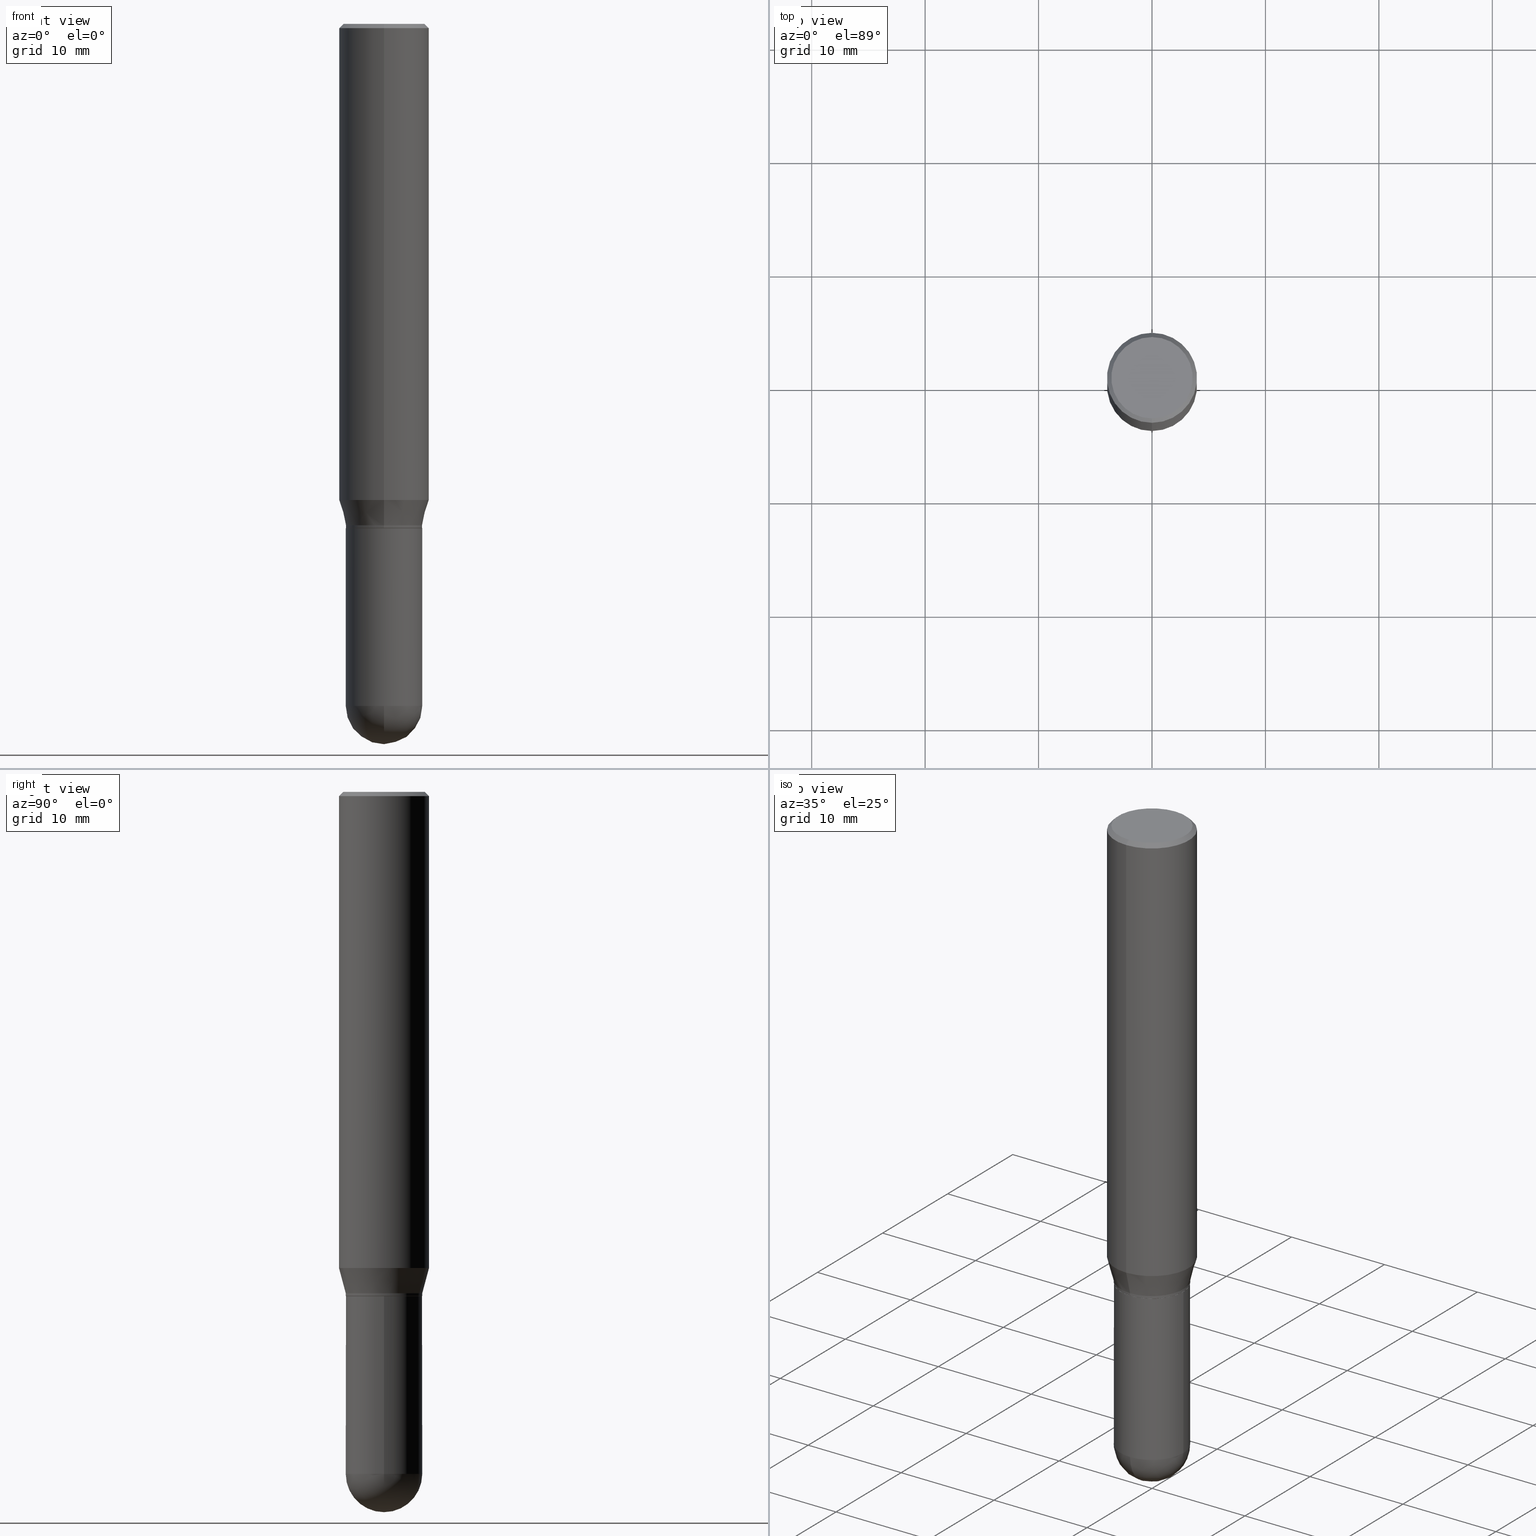
[diagram: canonical four-view strip — front | top / right | iso, engineering-drawing reading convention]
A machine part, canonical four-view strip (front | top / right | iso — engineering-drawing reading convention). The complete STEP part file that produces these views, byte-faithful:
ISO-10303-21;
HEADER;
FILE_DESCRIPTION (( 'STEP AP203' ),
    '1' );
FILE_NAME ('39134.STEP',
    '2024-03-08T12:45:31',
    ( '' ),
    ( '' ),
    'SwSTEP 2.0',
    'SolidWorks 2023',
    '' );
FILE_SCHEMA (( 'CONFIG_CONTROL_DESIGN' ));
ENDSEC;

DATA;
#1 = CIRCLE ( 'NONE', #288, 0.1562500000000000000 ) ;
#2 = LOCAL_TIME ( 7, 45, 31.00000000000000000, #375 ) ;
#3 = AXIS2_PLACEMENT_3D ( 'NONE', #153, #104, #146 ) ;
#4 = CARTESIAN_POINT ( 'NONE',  ( 0.1328000000000000014, -7.037429786572241288E-15, -1.750000000000000222 ) ) ;
#5 = DIRECTION ( 'NONE',  ( 2.445566685211260187E-29, -3.491341170506808259E-15, -1.000000000000000000 ) ) ;
#6 = ORIENTED_EDGE ( 'NONE', *, *, #258, .T. ) ;
#7 = CARTESIAN_POINT ( 'NONE',  ( 4.279741699119705467E-29, -6.109847048386914553E-15, -1.750000000000000222 ) ) ;
#8 = ORIENTED_EDGE ( 'NONE', *, *, #419, .T. ) ;
#9 = AXIS2_PLACEMENT_3D ( 'NONE', #286, #485, #125 ) ;
#10 = FACE_OUTER_BOUND ( 'NONE', #55, .T. ) ;
#11 = VERTEX_POINT ( 'NONE', #184 ) ;
#12 = DIRECTION ( 'NONE',  ( -2.445566685211260187E-29, 3.491341170506808259E-15, 1.000000000000000000 ) ) ;
#13 = ORIENTED_EDGE ( 'NONE', *, *, #376, .T. ) ;
#14 = EDGE_LOOP ( 'NONE', ( #492, #315, #459, #126 ) ) ;
#15 = DIRECTION ( 'NONE',  ( -6.982962677686265133E-15, -1.000000000000000000, 4.114228906120880627E-15 ) ) ;
#16 = VECTOR ( 'NONE', #461, 39.37007874015748143 ) ;
#17 = ORIENTED_EDGE ( 'NONE', *, *, #129, .T. ) ;
#18 = CLOSED_SHELL ( 'NONE', ( #276, #359, #114, #438, #188, #347, #447, #269, #42, #407, #157, #490 ) ) ;
#19 = CARTESIAN_POINT ( 'NONE',  ( -1.091087918388438547E-15, -0.1562500000000057454, -1.652483408562509304 ) ) ;
#20 = DIRECTION ( 'NONE',  ( 2.445566685211259906E-29, -3.491341170506808259E-15, -1.000000000000000000 ) ) ;
#21 = DIRECTION ( 'NONE',  ( -6.982962677686265133E-15, -1.000000000000000000, 3.491341170506808654E-15 ) ) ;
#22 = VERTEX_POINT ( 'NONE', #457 ) ;
#23 = CC_DESIGN_PERSON_AND_ORGANIZATION_ASSIGNMENT ( #504, #432, ( #442 ) ) ;
#24 = DIRECTION ( 'NONE',  ( -2.445566685211260187E-29, 3.491341170506808259E-15, 1.000000000000000000 ) ) ;
#25 = EDGE_LOOP ( 'NONE', ( #143, #358, #301, #480, #168 ) ) ;
#26 = AXIS2_PLACEMENT_3D ( 'NONE', #341, #80, #344 ) ;
#27 = AXIS2_PLACEMENT_3D ( 'NONE', #312, #382, #81 ) ;
#28 = EDGE_CURVE ( 'NONE', #219, #22, #340, .T. ) ;
#29 = EDGE_CURVE ( 'NONE', #421, #370, #416, .T. ) ;
#30 = DIRECTION ( 'NONE',  ( -2.445468806185136597E-29, 3.491481338843145583E-15, 1.000000000000000000 ) ) ;
#31 = PERSON_AND_ORGANIZATION ( #414, #165 ) ;
#32 = CARTESIAN_POINT ( 'NONE',  ( -9.273374435966920461E-16, -0.1328000000000059411, -1.749499999999999833 ) ) ;
#33 = PRODUCT_DEFINITION ( 'UNKNOWN', '', #442, #335 ) ;
#34 = DATE_AND_TIME ( #265, #121 ) ;
#35 = DIRECTION ( 'NONE',  ( -6.982962677686265922E-15, -1.000000000000000000, 4.129777768199944284E-15 ) ) ;
#36 = AXIS2_PLACEMENT_3D ( 'NONE', #7, #12, #167 ) ;
#37 =( GEOMETRIC_REPRESENTATION_CONTEXT ( 3 ) GLOBAL_UNCERTAINTY_ASSIGNED_CONTEXT ( ( #422 ) ) GLOBAL_UNIT_ASSIGNED_CONTEXT ( ( #182, #171, #130 ) ) REPRESENTATION_CONTEXT ( 'NONE', 'WORKASPACE' ) );
#38 = COORDINATED_UNIVERSAL_TIME_OFFSET ( 5, 0, .BEHIND. ) ;
#39 = CYLINDRICAL_SURFACE ( 'NONE', #26, 0.1328000000000000014 ) ;
#40 = PERSON_AND_ORGANIZATION_ROLE ( 'classification_officer' ) ;
#41 = FACE_OUTER_BOUND ( 'NONE', #49, .T. ) ;
#42 = ADVANCED_FACE ( 'NONE', ( #62 ), #217, .F. ) ;
#43 = DIRECTION ( 'NONE',  ( -2.445566685211260187E-29, 3.491341170506808259E-15, 1.000000000000000000 ) ) ;
#44 = CONICAL_SURFACE ( 'NONE', #208, 0.1327999999999999181, 0.2617993877991504625 ) ;
#45 = AXIS2_PLACEMENT_3D ( 'NONE', #112, #310, #110 ) ;
#46 = DIRECTION ( 'NONE',  ( -2.445468806185136597E-29, 3.491481338843145583E-15, 1.000000000000000000 ) ) ;
#47 = ORIENTED_EDGE ( 'NONE', *, *, #481, .F. ) ;
#48 = CARTESIAN_POINT ( 'NONE',  ( 0.1328000000000000014, -9.273374435967362223E-16, 6.475562758257002307E-30 ) ) ;
#49 = EDGE_LOOP ( 'NONE', ( #411, #176, #124, #205, #264 ) ) ;
#50 = CARTESIAN_POINT ( 'NONE',  ( -0.1328000000000000014, -6.243962731053086807E-15, -2.367199999999999971 ) ) ;
#51 = ORIENTED_EDGE ( 'NONE', *, *, #318, .T. ) ;
#52 = DIRECTION ( 'NONE',  ( -2.445566685211260187E-29, 3.491341170506808259E-15, 1.000000000000000000 ) ) ;
#53 = ORIENTED_EDGE ( 'NONE', *, *, #175, .F. ) ;
#54 = DIRECTION ( 'NONE',  ( 6.982962677686265133E-15, 1.000000000000000000, -3.496765431890256920E-15 ) ) ;
#55 = EDGE_LOOP ( 'NONE', ( #225, #336, #290, #287 ) ) ;
#56 = CYLINDRICAL_SURFACE ( 'NONE', #394, 0.1562500000000000000 ) ;
#57 = EDGE_CURVE ( 'NONE', #409, #163, #455, .T. ) ;
#58 = ORIENTED_EDGE ( 'NONE', *, *, #89, .F. ) ;
#59 = CARTESIAN_POINT ( 'NONE',  ( 0.000000000000000000, 0.000000000000000000, 0.000000000000000000 ) ) ;
#60 = VECTOR ( 'NONE', #158, 39.37007874015748143 ) ;
#61 = APPROVAL_PERSON_ORGANIZATION ( #339, #159, #194 ) ;
#62 = FACE_OUTER_BOUND ( 'NONE', #284, .T. ) ;
#63 = DIRECTION ( 'NONE',  ( -6.982962677686265133E-15, -1.000000000000000000, 3.491341170506808654E-15 ) ) ;
#64 = ORIENTED_EDGE ( 'NONE', *, *, #275, .F. ) ;
#65 = DIRECTION ( 'NONE',  ( -6.982962677686265133E-15, -1.000000000000000000, 3.491341170506807865E-15 ) ) ;
#66 = ORIENTED_EDGE ( 'NONE', *, *, #383, .T. ) ;
#67 = DIRECTION ( 'NONE',  ( -2.445566685211260187E-29, 3.491341170506808259E-15, 1.000000000000000000 ) ) ;
#68 = ORIENTED_EDGE ( 'NONE', *, *, #493, .F. ) ;
#69 = AXIS2_PLACEMENT_3D ( 'NONE', #123, #46, #82 ) ;
#70 = AXIS2_PLACEMENT_3D ( 'NONE', #197, #77, #466 ) ;
#71 = EDGE_CURVE ( 'NONE', #203, #370, #334, .T. ) ;
#72 = PERSON_AND_ORGANIZATION ( #414, #165 ) ;
#73 = DIRECTION ( 'NONE',  ( -1.000000000000000000, 6.982962677686265922E-15, -4.883557194083112340E-29 ) ) ;
#74 = APPROVAL_STATUS ( 'not_yet_approved' ) ;
#75 = CARTESIAN_POINT ( 'NONE',  ( -0.1328000000000000014, 9.436007530894130566E-16, -6.532345799858513932E-30 ) ) ;
#76 = MECHANICAL_CONTEXT ( 'NONE', #149, 'mechanical' ) ;
#77 = DIRECTION ( 'NONE',  ( 2.438088387897960049E-29, -3.491481338843145188E-15, -1.000000000000000000 ) ) ;
#78 = CIRCLE ( 'NONE', #181, 0.1328000000000000014 ) ;
#79 = DIRECTION ( 'NONE',  ( 0.000000000000000000, 0.000000000000000000, 1.000000000000000000 ) ) ;
#80 = DIRECTION ( 'NONE',  ( -2.445468806185136597E-29, 3.491481338843145583E-15, 1.000000000000000000 ) ) ;
#81 = DIRECTION ( 'NONE',  ( 1.000000000000000000, -6.982962677686266711E-15, 4.876176775795935232E-29 ) ) ;
#82 = DIRECTION ( 'NONE',  ( 1.000000000000000000, -6.982962677686263555E-15, 0.000000000000000000 ) ) ;
#83 = ORIENTED_EDGE ( 'NONE', *, *, #71, .T. ) ;
#84 = CIRCLE ( 'NONE', #506, 0.1327999999999999181 ) ;
#85 = CYLINDRICAL_SURFACE ( 'NONE', #9, 0.1327999999999999181 ) ;
#86 = ORIENTED_EDGE ( 'NONE', *, *, #71, .F. ) ;
#87 = CARTESIAN_POINT ( 'NONE',  ( -1.020499077168515012E-15, -0.1412499999999999867, 3.422095079102854062E-16 ) ) ;
#88 = ORIENTED_EDGE ( 'NONE', *, *, #419, .F. ) ;
#89 = EDGE_CURVE ( 'NONE', #399, #260, #193, .T. ) ;
#90 = DIRECTION ( 'NONE',  ( 1.000000000000000000, -6.982962677686263555E-15, 0.000000000000000000 ) ) ;
#91 = AXIS2_PLACEMENT_3D ( 'NONE', #251, #283, #248 ) ;
#92 = LINE ( 'NONE', #398, #425 ) ;
#93 = EDGE_LOOP ( 'NONE', ( #170, #327, #377, #448 ) ) ;
#94 = ORIENTED_EDGE ( 'NONE', *, *, #57, .T. ) ;
#95 = ORIENTED_EDGE ( 'NONE', *, *, #493, .T. ) ;
#96 = CIRCLE ( 'NONE', #440, 0.1323000000000000009 ) ;
#97 = CARTESIAN_POINT ( 'NONE',  ( 9.418243962500552058E-16, 0.1322999999999938947, -1.750000000000000666 ) ) ;
#98 = VERTEX_POINT ( 'NONE', #303 ) ;
#99 = DIRECTION ( 'NONE',  ( 6.982962677686265922E-15, 1.000000000000000000, -4.114228906120878260E-15 ) ) ;
#100 = DIRECTION ( 'NONE',  ( -2.445566685211260187E-29, 3.491341170506808259E-15, 1.000000000000000000 ) ) ;
#101 = ORIENTED_EDGE ( 'NONE', *, *, #285, .T. ) ;
#102 = EDGE_CURVE ( 'NONE', #484, #161, #429, .T. ) ;
#103 = APPROVAL_STATUS ( 'not_yet_approved' ) ;
#104 = DIRECTION ( 'NONE',  ( -2.445468806185136597E-29, 3.491481338843145583E-15, 1.000000000000000000 ) ) ;
#105 = CIRCLE ( 'NONE', #415, 0.1327999999999999181 ) ;
#106 = LOCAL_TIME ( 7, 45, 31.00000000000000000, #469 ) ;
#107 = COORDINATED_UNIVERSAL_TIME_OFFSET ( 5, 0, .BEHIND. ) ;
#108 = DIRECTION ( 'NONE',  ( -4.851104656540965064E-15, -0.7071067811865501263, -0.7071067811865449082 ) ) ;
#109 = CALENDAR_DATE ( 2024, 8, 3 ) ;
#110 = DIRECTION ( 'NONE',  ( -6.982962677686265133E-15, -1.000000000000000000, 4.114228906120880627E-15 ) ) ;
#111 = APPROVAL_DATE_TIME ( #145, #159 ) ;
#112 = CARTESIAN_POINT ( 'NONE',  ( 4.255286032267592960E-29, -6.074933636681847137E-15, -1.739999999999999991 ) ) ;
#113 = APPLICATION_PROTOCOL_DEFINITION ( 'international standard', 'config_control_design', 1994, #149 ) ;
#114 = ADVANCED_FACE ( 'NONE', ( #271 ), #166, .T. ) ;
#115 = DIRECTION ( 'NONE',  ( -2.445566685211260467E-29, 3.491341170506808259E-15, 1.000000000000000000 ) ) ;
#116 = CARTESIAN_POINT ( 'NONE',  ( 1.110223024625156343E-15, 0.1562500000000000000, -5.455220578916888275E-16 ) ) ;
#117 = SPHERICAL_SURFACE ( 'NONE', #317, 0.1328000000000000014 ) ;
#118 = ORIENTED_EDGE ( 'NONE', *, *, #371, .F. ) ;
#119 = CLOSED_SHELL ( 'NONE', ( #242, #392, #138, #226, #141 ) ) ;
#120 = VECTOR ( 'NONE', #412, 39.37007874015748854 ) ;
#121 = LOCAL_TIME ( 7, 45, 31.00000000000000000, #107 ) ;
#122 = PRODUCT ( '39134', '39134', '', ( #76 ) ) ;
#123 = CARTESIAN_POINT ( 'NONE',  ( 4.279570410823989044E-29, -6.110092342975505460E-15, -1.750000000000000222 ) ) ;
#124 = ORIENTED_EDGE ( 'NONE', *, *, #129, .F. ) ;
#125 = DIRECTION ( 'NONE',  ( -6.982962677686265133E-15, -1.000000000000000000, 3.491341170506807865E-15 ) ) ;
#126 = ORIENTED_EDGE ( 'NONE', *, *, #293, .F. ) ;
#127 = DIRECTION ( 'NONE',  ( 1.000000000000000000, -6.982962677686263555E-15, 0.000000000000000000 ) ) ;
#128 = EDGE_LOOP ( 'NONE', ( #86, #95, #8, #423 ) ) ;
#129 = EDGE_CURVE ( 'NONE', #210, #11, #387, .T. ) ;
#130 =( NAMED_UNIT ( * ) SI_UNIT ( $, .STERADIAN. ) SOLID_ANGLE_UNIT ( ) );
#131 = ORIENTED_EDGE ( 'NONE', *, *, #29, .F. ) ;
#132 = MANIFOLD_SOLID_BREP ( 'Body-Move/Copy2[1]', #119 ) ;
#133 = CARTESIAN_POINT ( 'NONE',  ( -1.091087918388478779E-15, -0.1562500000000000833, -0.01499999999999960566 ) ) ;
#134 = ORIENTED_EDGE ( 'NONE', *, *, #196, .T. ) ;
#135 = AXIS2_PLACEMENT_3D ( 'NONE', #319, #52, #245 ) ;
#136 = CYLINDRICAL_SURFACE ( 'NONE', #467, 0.1562500000000000000 ) ;
#137 = ORIENTED_EDGE ( 'NONE', *, *, #400, .F. ) ;
#138 = ADVANCED_FACE ( 'NONE', ( #391 ), #309, .F. ) ;
#139 = DIRECTION ( 'NONE',  ( -6.982962677686265133E-15, -1.000000000000000000, 4.114228906120880627E-15 ) ) ;
#140 = DIRECTION ( 'NONE',  ( -6.982962677686265133E-15, -1.000000000000000000, 3.496765431890256920E-15 ) ) ;
#141 = ADVANCED_FACE ( 'NONE', ( #151 ), #346, .T. ) ;
#142 = PERSON_AND_ORGANIZATION_ROLE ( 'design_owner' ) ;
#143 = ORIENTED_EDGE ( 'NONE', *, *, #144, .F. ) ;
#144 = EDGE_CURVE ( 'NONE', #292, #11, #471, .T. ) ;
#145 = DATE_AND_TIME ( #472, #106 ) ;
#146 = DIRECTION ( 'NONE',  ( 1.000000000000000000, -6.982962677686263555E-15, 0.000000000000000000 ) ) ;
#147 = AXIS2_PLACEMENT_3D ( 'NONE', #321, #274, #316 ) ;
#148 = AXIS2_PLACEMENT_3D ( 'NONE', #501, #331, #498 ) ;
#149 = APPLICATION_CONTEXT ( 'configuration controlled 3d designs of mechanical parts and assemblies' ) ;
#150 = APPROVAL_ROLE ( '' ) ;
#151 = FACE_OUTER_BOUND ( 'NONE', #25, .T. ) ;
#152 = SHAPE_DEFINITION_REPRESENTATION ( #246, #349 ) ;
#153 = CARTESIAN_POINT ( 'NONE',  ( 5.788913758001455526E-29, -8.265034625309493084E-15, -2.367199999999999971 ) ) ;
#154 = PERSON_AND_ORGANIZATION_ROLE ( 'design_supplier' ) ;
#155 = DIRECTION ( 'NONE',  ( 5.024295867788147587E-15, 0.7071067811865620056, 0.7071067811865330288 ) ) ;
#156 = AXIS2_PLACEMENT_3D ( 'NONE', #439, #482, #281 ) ;
#157 = ADVANCED_FACE ( 'NONE', ( #234 ), #356, .T. ) ;
#158 = DIRECTION ( 'NONE',  ( 4.937700262164548831E-15, 0.7071067811865452413, -0.7071067811865497932 ) ) ;
#159 = APPROVAL ( #74, 'UNSPECIFIED' ) ;
#160 = FACE_OUTER_BOUND ( 'NONE', #93, .T. ) ;
#161 = VERTEX_POINT ( 'NONE', #379 ) ;
#162 = CARTESIAN_POINT ( 'NONE',  ( 4.255286032267592960E-29, -6.074933636681847137E-15, -1.739999999999999991 ) ) ;
#163 = VERTEX_POINT ( 'NONE', #32 ) ;
#164 = AXIS2_PLACEMENT_3D ( 'NONE', #390, #79, #236 ) ;
#165 = ORGANIZATION ( 'UNSPECIFIED', 'UNSPECIFIED', '' ) ;
#166 = CONICAL_SURFACE ( 'NONE', #460, 0.1562500000000000000, 0.7853981633974485010 ) ;
#167 = DIRECTION ( 'NONE',  ( -6.982962677686265922E-15, -1.000000000000000000, 4.129777768199944284E-15 ) ) ;
#168 = ORIENTED_EDGE ( 'NONE', *, *, #285, .F. ) ;
#169 = DIRECTION ( 'NONE',  ( -2.445566685211260187E-29, 3.491341170506808259E-15, 1.000000000000000000 ) ) ;
#170 = ORIENTED_EDGE ( 'NONE', *, *, #400, .T. ) ;
#171 =( NAMED_UNIT ( * ) PLANE_ANGLE_UNIT ( ) SI_UNIT ( $, .RADIAN. ) );
#172 = ORIENTED_EDGE ( 'NONE', *, *, #89, .T. ) ;
#173 = AXIS2_PLACEMENT_3D ( 'NONE', #333, #298, #454 ) ;
#174 = LINE ( 'NONE', #458, #16 ) ;
#175 = EDGE_CURVE ( 'NONE', #22, #299, #453, .T. ) ;
#176 = ORIENTED_EDGE ( 'NONE', *, *, #144, .T. ) ;
#177 = DIRECTION ( 'NONE',  ( -2.445566685211260187E-29, 3.491341170506808259E-15, 1.000000000000000000 ) ) ;
#178 = CARTESIAN_POINT ( 'NONE',  ( 5.788913758001455526E-29, -8.265034625309493084E-15, -2.367199999999999971 ) ) ;
#179 = CARTESIAN_POINT ( 'NONE',  ( 0.000000000000000000, 0.000000000000000000, 0.000000000000000000 ) ) ;
#180 = DIRECTION ( 'NONE',  ( 6.982962677686265922E-15, 1.000000000000000000, -3.491341170506808259E-15 ) ) ;
#181 = AXIS2_PLACEMENT_3D ( 'NONE', #478, #395, #127 ) ;
#182 =( CONVERSION_BASED_UNIT ( 'INCH', #456 ) LENGTH_UNIT ( ) NAMED_UNIT ( #384 ) );
#183 = AXIS2_PLACEMENT_3D ( 'NONE', #508, #343, #35 ) ;
#184 = CARTESIAN_POINT ( 'NONE',  ( -0.1328000000000000014, -6.243962731053086018E-15, -1.750000000000000222 ) ) ;
#185 = ORIENTED_EDGE ( 'NONE', *, *, #318, .F. ) ;
#186 = DATE_AND_TIME ( #109, #434 ) ;
#187 = CARTESIAN_POINT ( 'NONE',  ( 5.777557149681153201E-29, -8.281297934802172088E-15, -2.367199999999999971 ) ) ;
#188 = ADVANCED_FACE ( 'NONE', ( #393 ), #489, .T. ) ;
#189 = APPROVAL_DATE_TIME ( #34, #427 ) ;
#190 = AXIS2_PLACEMENT_3D ( 'NONE', #363, #100, #140 ) ;
#191 = DIRECTION ( 'NONE',  ( -1.000000000000000000, 7.105427357601001070E-15, -4.926315508542082329E-29 ) ) ;
#192 = CIRCLE ( 'NONE', #173, 0.1328000000000000014 ) ;
#193 = CIRCLE ( 'NONE', #148, 0.1412499999999999867 ) ;
#194 = APPROVAL_ROLE ( '' ) ;
#195 = DIRECTION ( 'NONE',  ( 6.982962677686265133E-15, 1.000000000000000000, -3.496765431890256920E-15 ) ) ;
#196 = EDGE_CURVE ( 'NONE', #260, #399, #326, .T. ) ;
#197 = CARTESIAN_POINT ( 'NONE',  ( 9.273374435967790180E-16, 0.1327999999999938952, -1.750000000000000666 ) ) ;
#198 = CC_DESIGN_PERSON_AND_ORGANIZATION_ASSIGNMENT ( #272, #154, ( #442 ) ) ;
#199 = EDGE_CURVE ( 'NONE', #352, #219, #233, .T. ) ;
#200 = AXIS2_PLACEMENT_3D ( 'NONE', #263, #218, #491 ) ;
#201 = AXIS2_PLACEMENT_3D ( 'NONE', #503, #20, #180 ) ;
#202 = LINE ( 'NONE', #48, #373 ) ;
#203 = VERTEX_POINT ( 'NONE', #267 ) ;
#204 = DIRECTION ( 'NONE',  ( -2.445566685211260467E-29, 3.491341170506808259E-15, 1.000000000000000000 ) ) ;
#205 = ORIENTED_EDGE ( 'NONE', *, *, #300, .F. ) ;
#206 = LINE ( 'NONE', #351, #60 ) ;
#207 = ORIENTED_EDGE ( 'NONE', *, *, #293, .T. ) ;
#208 = AXIS2_PLACEMENT_3D ( 'NONE', #162, #209, #444 ) ;
#209 = DIRECTION ( 'NONE',  ( -2.445566685211260187E-29, 3.491341170506808259E-15, 1.000000000000000000 ) ) ;
#210 = VERTEX_POINT ( 'NONE', #4 ) ;
#211 = DIRECTION ( 'NONE',  ( -2.445566685211260467E-29, 3.491341170506808259E-15, 1.000000000000000000 ) ) ;
#212 = EDGE_LOOP ( 'NONE', ( #137, #443 ) ) ;
#213 = CYLINDRICAL_SURFACE ( 'NONE', #215, 0.1327999999999999181 ) ;
#214 = VERTEX_POINT ( 'NONE', #307 ) ;
#215 = AXIS2_PLACEMENT_3D ( 'NONE', #179, #417, #65 ) ;
#216 = LINE ( 'NONE', #500, #120 ) ;
#217 = PLANE ( 'NONE',  #201 ) ;
#218 = DIRECTION ( 'NONE',  ( -2.445566685211259906E-29, 3.491341170506808259E-15, 1.000000000000000000 ) ) ;
#219 = VERTEX_POINT ( 'NONE', #433 ) ;
#220 = CC_DESIGN_PERSON_AND_ORGANIZATION_ASSIGNMENT ( #502, #507, ( #33 ) ) ;
#221 = EDGE_LOOP ( 'NONE', ( #256, #464, #244, #486 ) ) ;
#222 = CIRCLE ( 'NONE', #91, 0.1323000000000000009 ) ;
#223 =( LENGTH_UNIT ( ) NAMED_UNIT ( * ) SI_UNIT ( $, .METRE. ) );
#224 = SECURITY_CLASSIFICATION ( '', '', #308 ) ;
#225 = ORIENTED_EDGE ( 'NONE', *, *, #302, .T. ) ;
#226 = ADVANCED_FACE ( 'NONE', ( #388 ), #273, .T. ) ;
#227 = DIRECTION ( 'NONE',  ( 6.982962677686265922E-15, 1.000000000000000000, -4.114228906120878260E-15 ) ) ;
#228 = PERSON_AND_ORGANIZATION ( #414, #165 ) ;
#229 = CARTESIAN_POINT ( 'NONE',  ( 4.279570410823989044E-29, -6.110092342975505460E-15, -1.750000000000000222 ) ) ;
#230 = CC_DESIGN_DATE_AND_TIME_ASSIGNMENT ( #342, #232, ( #33 ) ) ;
#231 = EDGE_CURVE ( 'NONE', #260, #445, #470, .T. ) ;
#232 = DATE_TIME_ROLE ( 'creation_date' ) ;
#233 = CIRCLE ( 'NONE', #499, 0.1328000000000000014 ) ;
#234 = FACE_OUTER_BOUND ( 'NONE', #249, .T. ) ;
#235 = AXIS2_PLACEMENT_3D ( 'NONE', #229, #266, #437 ) ;
#236 = DIRECTION ( 'NONE',  ( 1.000000000000000000, 0.000000000000000000, 0.000000000000000000 ) ) ;
#237 = LINE ( 'NONE', #512, #250 ) ;
#238 = DIRECTION ( 'NONE',  ( 2.445566685211260187E-29, -3.491341170506808259E-15, -1.000000000000000000 ) ) ;
#239 = DIRECTION ( 'NONE',  ( -2.445468806185136877E-29, 3.491481338843145188E-15, 1.000000000000000000 ) ) ;
#240 = CONICAL_SURFACE ( 'NONE', #36, 0.1323000000000000009, 0.7853981633974653764 ) ;
#241 = ORIENTED_EDGE ( 'NONE', *, *, #28, .F. ) ;
#242 = ADVANCED_FACE ( 'NONE', ( #41 ), #39, .T. ) ;
#243 = CARTESIAN_POINT ( 'NONE',  ( 9.273374435967940064E-16, 0.1327999999999917302, -2.367200000000000415 ) ) ;
#244 = ORIENTED_EDGE ( 'NONE', *, *, #424, .F. ) ;
#245 = DIRECTION ( 'NONE',  ( -6.982962677686265133E-15, -1.000000000000000000, 4.114228906120880627E-15 ) ) ;
#246 = PRODUCT_DEFINITION_SHAPE ( 'NONE', 'NONE',  #33 ) ;
#247 = EDGE_LOOP ( 'NONE', ( #47, #361, #323, #406 ) ) ;
#248 = DIRECTION ( 'NONE',  ( -6.982962677686265922E-15, -1.000000000000000000, 4.129777768199944284E-15 ) ) ;
#249 = EDGE_LOOP ( 'NONE', ( #320, #418, #94, #185 ) ) ;
#250 = VECTOR ( 'NONE', #115, 39.37007874015748143 ) ;
#251 = CARTESIAN_POINT ( 'NONE',  ( 4.279741699119705467E-29, -6.109847048386914553E-15, -1.750000000000000222 ) ) ;
#252 = EDGE_LOOP ( 'NONE', ( #397, #83, #131, #88 ) ) ;
#253 = DIRECTION ( 'NONE',  ( -2.445566685211260187E-29, 3.491341170506808259E-15, 1.000000000000000000 ) ) ;
#254 = DIRECTION ( 'NONE',  ( -4.937700262164631661E-15, -0.7071067811865571207, 0.7071067811865379138 ) ) ;
#255 = PLANE ( 'NONE',  #200 ) ;
#256 = ORIENTED_EDGE ( 'NONE', *, *, #29, .T. ) ;
#257 = CIRCLE ( 'NONE', #156, 0.1327999999999999181 ) ;
#258 = EDGE_CURVE ( 'NONE', #163, #214, #237, .T. ) ;
#259 = FACE_OUTER_BOUND ( 'NONE', #368, .T. ) ;
#260 = VERTEX_POINT ( 'NONE', #87 ) ;
#261 = DIRECTION ( 'NONE',  ( -6.982962677686265133E-15, -1.000000000000000000, 3.496765431890256920E-15 ) ) ;
#262 = ORIENTED_EDGE ( 'NONE', *, *, #483, .T. ) ;
#263 = CARTESIAN_POINT ( 'NONE',  ( 4.279741699119705467E-29, -6.109847048386914553E-15, -1.750000000000000222 ) ) ;
#264 = ORIENTED_EDGE ( 'NONE', *, *, #175, .T. ) ;
#265 = CALENDAR_DATE ( 2024, 8, 3 ) ;
#266 = DIRECTION ( 'NONE',  ( -2.445468806185136597E-29, 3.491481338843145583E-15, 1.000000000000000000 ) ) ;
#267 = CARTESIAN_POINT ( 'NONE',  ( 1.026911888857325918E-15, 0.1327999999999938396, -1.740000000000000657 ) ) ;
#268 = DIRECTION ( 'NONE',  ( -7.105427357601001859E-15, -1.000000000000000000, 0.000000000000000000 ) ) ;
#269 = ADVANCED_FACE ( 'NONE', ( #348 ), #278, .T. ) ;
#270 = AXIS2_PLACEMENT_3D ( 'NONE', #449, #5, #54 ) ;
#271 = FACE_OUTER_BOUND ( 'NONE', #14, .T. ) ;
#272 = PERSON_AND_ORGANIZATION ( #414, #165 ) ;
#273 = SPHERICAL_SURFACE ( 'NONE', #364, 0.1328000000000000014 ) ;
#274 = DIRECTION ( 'NONE',  ( -2.445566685211260187E-29, 3.491341170506808259E-15, 1.000000000000000000 ) ) ;
#275 = EDGE_CURVE ( 'NONE', #161, #203, #92, .T. ) ;
#276 = ADVANCED_FACE ( 'NONE', ( #10 ), #85, .T. ) ;
#277 = CARTESIAN_POINT ( 'NONE',  ( 5.777557149681153201E-29, -8.281297934802172088E-15, -2.367199999999999971 ) ) ;
#278 = CONICAL_SURFACE ( 'NONE', #270, 0.1562500000000000000, 0.7853981633974485010 ) ;
#279 = EDGE_LOOP ( 'NONE', ( #17, #101 ) ) ;
#280 = APPROVAL_PERSON_ORGANIZATION ( #72, #427, #150 ) ;
#281 = DIRECTION ( 'NONE',  ( -6.982962677686265133E-15, -1.000000000000000000, 4.114228906120880627E-15 ) ) ;
#282 = ORIENTED_EDGE ( 'NONE', *, *, #231, .F. ) ;
#283 = DIRECTION ( 'NONE',  ( -2.445566685211260187E-29, 3.491341170506808259E-15, 1.000000000000000000 ) ) ;
#284 = EDGE_LOOP ( 'NONE', ( #172, #134 ) ) ;
#285 = EDGE_CURVE ( 'NONE', #11, #210, #324, .T. ) ;
#286 = CARTESIAN_POINT ( 'NONE',  ( 0.000000000000000000, 0.000000000000000000, 0.000000000000000000 ) ) ;
#287 = ORIENTED_EDGE ( 'NONE', *, *, #258, .F. ) ;
#288 = AXIS2_PLACEMENT_3D ( 'NONE', #463, #497, #261 ) ;
#289 = LOCAL_TIME ( 7, 45, 31.00000000000000000, #38 ) ;
#290 = ORIENTED_EDGE ( 'NONE', *, *, #430, .F. ) ;
#291 = EDGE_CURVE ( 'NONE', #484, #409, #222, .T. ) ;
#292 = VERTEX_POINT ( 'NONE', #50 ) ;
#293 = EDGE_CURVE ( 'NONE', #399, #98, #206, .T. ) ;
#294 = CARTESIAN_POINT ( 'NONE',  ( 0.000000000000000000, 0.000000000000000000, 0.000000000000000000 ) ) ;
#295 = MANIFOLD_SOLID_BREP ( 'Body-Move/Copy2[2]', #18 ) ;
#296 = ORIENTED_EDGE ( 'NONE', *, *, #481, .T. ) ;
#297 = VECTOR ( 'NONE', #204, 39.37007874015748143 ) ;
#298 = DIRECTION ( 'NONE',  ( 1.000000000000000000, -6.982962677686265922E-15, 4.883557194083112340E-29 ) ) ;
#299 = VERTEX_POINT ( 'NONE', #243 ) ;
#300 = EDGE_CURVE ( 'NONE', #22, #210, #202, .T. ) ;
#301 = ORIENTED_EDGE ( 'NONE', *, *, #28, .T. ) ;
#302 = EDGE_CURVE ( 'NONE', #163, #161, #405, .T. ) ;
#303 = CARTESIAN_POINT ( 'NONE',  ( 1.110223024625197364E-15, 0.1562499999999999445, -0.01500000000000069854 ) ) ;
#304 = CC_DESIGN_PERSON_AND_ORGANIZATION_ASSIGNMENT ( #228, #142, ( #122 ) ) ;
#305 = DATE_AND_TIME ( #435, #289 ) ;
#306 = VECTOR ( 'NONE', #329, 39.37007874015748854 ) ;
#307 = CARTESIAN_POINT ( 'NONE',  ( -9.273374435966928350E-16, -0.1328000000000059966, -1.739999999999999547 ) ) ;
#308 = SECURITY_CLASSIFICATION_LEVEL ( 'unclassified' ) ;
#309 = PLANE ( 'NONE',  #70 ) ;
#310 = DIRECTION ( 'NONE',  ( -2.445566685211260187E-29, 3.491341170506808259E-15, 1.000000000000000000 ) ) ;
#311 = VECTOR ( 'NONE', #108, 39.37007874015748143 ) ;
#312 = CARTESIAN_POINT ( 'NONE',  ( 0.000000000000000000, 0.000000000000000000, 0.000000000000000000 ) ) ;
#313 = LINE ( 'NONE', #116, #297 ) ;
#314 = DIRECTION ( 'NONE',  ( -2.445468806185136597E-29, 3.491481338843145583E-15, 1.000000000000000000 ) ) ;
#315 = ORIENTED_EDGE ( 'NONE', *, *, #231, .T. ) ;
#316 = DIRECTION ( 'NONE',  ( -6.982962677686265133E-15, -1.000000000000000000, 3.496765431890256920E-15 ) ) ;
#317 = AXIS2_PLACEMENT_3D ( 'NONE', #277, #441, #99 ) ;
#318 = EDGE_CURVE ( 'NONE', #161, #163, #257, .T. ) ;
#319 = CARTESIAN_POINT ( 'NONE',  ( 4.278518915777100094E-29, -6.108101377801662129E-15, -1.749500000000000277 ) ) ;
#320 = ORIENTED_EDGE ( 'NONE', *, *, #102, .F. ) ;
#321 = CARTESIAN_POINT ( 'NONE',  ( 3.668350027816927222E-31, -5.237011755760265859E-17, -0.01500000000000015210 ) ) ;
#322 = EDGE_LOOP ( 'NONE', ( #282, #58, #207, #66 ) ) ;
#323 = ORIENTED_EDGE ( 'NONE', *, *, #381, .F. ) ;
#324 = CIRCLE ( 'NONE', #69, 0.1328000000000000014 ) ;
#325 = PRODUCT_RELATED_PRODUCT_CATEGORY ( 'detail', '', ( #122 ) ) ;
#326 = CIRCLE ( 'NONE', #426, 0.1412499999999999867 ) ;
#327 = ORIENTED_EDGE ( 'NONE', *, *, #102, .T. ) ;
#328 = FACE_OUTER_BOUND ( 'NONE', #221, .T. ) ;
#329 = DIRECTION ( 'NONE',  ( 1.839019923739601499E-15, 0.2588190451025251249, 0.9659258262890670910 ) ) ;
#330 = DIRECTION ( 'NONE',  ( -6.982962677686265922E-15, -1.000000000000000000, 4.129777768199944284E-15 ) ) ;
#331 = DIRECTION ( 'NONE',  ( -2.445566685211260187E-29, 3.491341170506808259E-15, 1.000000000000000000 ) ) ;
#332 = CC_DESIGN_SECURITY_CLASSIFICATION ( #224, ( #442 ) ) ;
#333 = CARTESIAN_POINT ( 'NONE',  ( 5.777557149681153201E-29, -8.281297934802172088E-15, -2.367199999999999971 ) ) ;
#334 = LINE ( 'NONE', #495, #306 ) ;
#335 = DESIGN_CONTEXT ( 'detailed design', #496, 'design' ) ;
#336 = ORIENTED_EDGE ( 'NONE', *, *, #275, .T. ) ;
#337 = APPROVAL_DATE_TIME ( #186, #403 ) ;
#338 = CARTESIAN_POINT ( 'NONE',  ( 5.777557149681153201E-29, -8.281297934802172088E-15, -2.367199999999999971 ) ) ;
#339 = PERSON_AND_ORGANIZATION ( #414, #165 ) ;
#340 = CIRCLE ( 'NONE', #374, 0.1328000000000000014 ) ;
#341 = CARTESIAN_POINT ( 'NONE',  ( 0.000000000000000000, 0.000000000000000000, 0.000000000000000000 ) ) ;
#342 = DATE_AND_TIME ( #378, #2 ) ;
#343 = DIRECTION ( 'NONE',  ( -2.445566685211260187E-29, 3.491341170506808259E-15, 1.000000000000000000 ) ) ;
#344 = DIRECTION ( 'NONE',  ( 1.000000000000000000, -6.982962677686266711E-15, 4.876176775795935232E-29 ) ) ;
#345 = CIRCLE ( 'NONE', #450, 0.1562500000000000000 ) ;
#346 = CYLINDRICAL_SURFACE ( 'NONE', #27, 0.1328000000000000014 ) ;
#347 = ADVANCED_FACE ( 'NONE', ( #401 ), #44, .T. ) ;
#348 = FACE_OUTER_BOUND ( 'NONE', #322, .T. ) ;
#349 = ADVANCED_BREP_SHAPE_REPRESENTATION ( '39134', ( #132, #295, #164 ), #37 ) ;
#350 = CC_DESIGN_DATE_AND_TIME_ASSIGNMENT ( #305, #428, ( #224 ) ) ;
#351 = CARTESIAN_POINT ( 'NONE',  ( 1.091087918388479371E-15, 0.1562499999999999445, -0.01500000000000069854 ) ) ;
#352 = VERTEX_POINT ( 'NONE', #353 ) ;
#353 = CARTESIAN_POINT ( 'NONE',  ( 6.107993711302689769E-29, -8.736835001854202867E-15, -2.500000000000000000 ) ) ;
#354 = CIRCLE ( 'NONE', #147, 0.1562500000000000000 ) ;
#355 = ORIENTED_EDGE ( 'NONE', *, *, #199, .F. ) ;
#356 = CONICAL_SURFACE ( 'NONE', #183, 0.1323000000000000009, 0.7853981633974653764 ) ;
#357 = CARTESIAN_POINT ( 'NONE',  ( 1.038715698305832292E-15, 0.1412499999999999867, -6.440943727578878808E-16 ) ) ;
#358 = ORIENTED_EDGE ( 'NONE', *, *, #381, .T. ) ;
#359 = ADVANCED_FACE ( 'NONE', ( #160 ), #240, .T. ) ;
#360 = CARTESIAN_POINT ( 'NONE',  ( 1.110223024625197167E-15, 0.1562499999999942824, -1.652483408562510414 ) ) ;
#361 = ORIENTED_EDGE ( 'NONE', *, *, #199, .T. ) ;
#362 = CARTESIAN_POINT ( 'NONE',  ( 4.255286032267592960E-29, -6.074933636681847137E-15, -1.739999999999999991 ) ) ;
#363 = CARTESIAN_POINT ( 'NONE',  ( 4.041258371844822097E-29, -5.769383357893714632E-15, -1.652483408562509748 ) ) ;
#364 = AXIS2_PLACEMENT_3D ( 'NONE', #338, #73, #227 ) ;
#365 = CC_DESIGN_APPROVAL ( #159, ( #224 ) ) ;
#366 = VECTOR ( 'NONE', #254, 39.37007874015748143 ) ;
#367 = FACE_OUTER_BOUND ( 'NONE', #212, .T. ) ;
#368 = EDGE_LOOP ( 'NONE', ( #64, #51, #6, #68 ) ) ;
#369 = CARTESIAN_POINT ( 'NONE',  ( 4.255286032267592960E-29, -6.074933636681847137E-15, -1.739999999999999991 ) ) ;
#370 = VERTEX_POINT ( 'NONE', #360 ) ;
#371 = EDGE_CURVE ( 'NONE', #370, #98, #313, .T. ) ;
#372 = CARTESIAN_POINT ( 'NONE',  ( -9.238459622578502223E-16, -0.1323000000000061072, -1.749999999999999556 ) ) ;
#373 = VECTOR ( 'NONE', #239, 39.37007874015748143 ) ;
#374 = AXIS2_PLACEMENT_3D ( 'NONE', #178, #30, #413 ) ;
#375 = COORDINATED_UNIVERSAL_TIME_OFFSET ( 5, 0, .BEHIND. ) ;
#376 = EDGE_CURVE ( 'NONE', #370, #421, #345, .T. ) ;
#377 = ORIENTED_EDGE ( 'NONE', *, *, #302, .F. ) ;
#378 = CALENDAR_DATE ( 2024, 8, 3 ) ;
#379 = CARTESIAN_POINT ( 'NONE',  ( 9.436007530894556551E-16, 0.1327999999999938952, -1.749500000000000721 ) ) ;
#380 = APPROVAL_STATUS ( 'not_yet_approved' ) ;
#381 = EDGE_CURVE ( 'NONE', #292, #219, #78, .T. ) ;
#382 = DIRECTION ( 'NONE',  ( -2.445468806185136597E-29, 3.491481338843145583E-15, 1.000000000000000000 ) ) ;
#383 = EDGE_CURVE ( 'NONE', #98, #445, #354, .T. ) ;
#384 = DIMENSIONAL_EXPONENTS ( 1.000000000000000000, 0.000000000000000000, 0.000000000000000000, 0.000000000000000000, 0.000000000000000000, 0.000000000000000000, 0.000000000000000000 ) ;
#385 = CC_DESIGN_APPROVAL ( #403, ( #33 ) ) ;
#386 = PERSON_AND_ORGANIZATION ( #414, #165 ) ;
#387 = CIRCLE ( 'NONE', #235, 0.1328000000000000014 ) ;
#388 = FACE_OUTER_BOUND ( 'NONE', #452, .T. ) ;
#389 = EDGE_CURVE ( 'NONE', #299, #292, #488, .T. ) ;
#390 = CARTESIAN_POINT ( 'NONE',  ( 0.000000000000000000, 0.000000000000000000, 0.000000000000000000 ) ) ;
#391 = FACE_OUTER_BOUND ( 'NONE', #279, .T. ) ;
#392 = ADVANCED_FACE ( 'NONE', ( #404 ), #117, .T. ) ;
#393 = FACE_OUTER_BOUND ( 'NONE', #252, .T. ) ;
#394 = AXIS2_PLACEMENT_3D ( 'NONE', #59, #494, #63 ) ;
#395 = DIRECTION ( 'NONE',  ( -2.445468806185136597E-29, 3.491481338843145583E-15, 1.000000000000000000 ) ) ;
#396 = CC_DESIGN_PERSON_AND_ORGANIZATION_ASSIGNMENT ( #386, #40, ( #224 ) ) ;
#397 = ORIENTED_EDGE ( 'NONE', *, *, #430, .T. ) ;
#398 = CARTESIAN_POINT ( 'NONE',  ( 9.436007530894122678E-16, 0.1327999999999999181, -4.636501074433038082E-16 ) ) ;
#399 = VERTEX_POINT ( 'NONE', #357 ) ;
#400 = EDGE_CURVE ( 'NONE', #409, #484, #96, .T. ) ;
#401 = FACE_OUTER_BOUND ( 'NONE', #128, .T. ) ;
#402 = ORIENTED_EDGE ( 'NONE', *, *, #383, .F. ) ;
#403 = APPROVAL ( #380, 'UNSPECIFIED' ) ;
#404 = FACE_OUTER_BOUND ( 'NONE', #247, .T. ) ;
#405 = CIRCLE ( 'NONE', #135, 0.1327999999999999181 ) ;
#406 = ORIENTED_EDGE ( 'NONE', *, *, #389, .F. ) ;
#407 = ADVANCED_FACE ( 'NONE', ( #367 ), #255, .F. ) ;
#408 = DIRECTION ( 'NONE',  ( -6.982962677686265133E-15, -1.000000000000000000, 3.496765431890256920E-15 ) ) ;
#409 = VERTEX_POINT ( 'NONE', #487 ) ;
#410 = CARTESIAN_POINT ( 'NONE',  ( 4.279741699119705467E-29, -6.109847048386914553E-15, -1.750000000000000222 ) ) ;
#411 = ORIENTED_EDGE ( 'NONE', *, *, #389, .T. ) ;
#412 = DIRECTION ( 'NONE',  ( -1.807323732225331323E-15, -0.2588190451025183525, 0.9659258262890689783 ) ) ;
#413 = DIRECTION ( 'NONE',  ( 1.000000000000000000, -6.982962677686263555E-15, 0.000000000000000000 ) ) ;
#414 = PERSON ( 'UNSPECIFIED', 'UNSPECIFIED', 'UNSPECIFIED', ('UNSPECIFIED'), ('UNSPECIFIED'), ('UNSPECIFIED') ) ;
#415 = AXIS2_PLACEMENT_3D ( 'NONE', #369, #177, #139 ) ;
#416 = CIRCLE ( 'NONE', #190, 0.1562500000000000000 ) ;
#417 = DIRECTION ( 'NONE',  ( -2.445566685211260187E-29, 3.491341170506808259E-15, 1.000000000000000000 ) ) ;
#418 = ORIENTED_EDGE ( 'NONE', *, *, #291, .T. ) ;
#419 = EDGE_CURVE ( 'NONE', #214, #421, #216, .T. ) ;
#420 = FACE_OUTER_BOUND ( 'NONE', #462, .T. ) ;
#421 = VERTEX_POINT ( 'NONE', #19 ) ;
#422 = UNCERTAINTY_MEASURE_WITH_UNIT (LENGTH_MEASURE( 1.000000000000000082E-05 ), #182, 'distance_accuracy_value', 'NONE');
#423 = ORIENTED_EDGE ( 'NONE', *, *, #376, .F. ) ;
#424 = EDGE_CURVE ( 'NONE', #445, #98, #1, .T. ) ;
#425 = VECTOR ( 'NONE', #211, 39.37007874015748143 ) ;
#426 = AXIS2_PLACEMENT_3D ( 'NONE', #505, #43, #475 ) ;
#427 = APPROVAL ( #103, 'UNSPECIFIED' ) ;
#428 = DATE_TIME_ROLE ( 'classification_date' ) ;
#429 = LINE ( 'NONE', #436, #479 ) ;
#430 = EDGE_CURVE ( 'NONE', #214, #203, #105, .T. ) ;
#431 = CARTESIAN_POINT ( 'NONE',  ( 3.668350027816927222E-31, -5.237011755760265859E-17, -0.01500000000000015210 ) ) ;
#432 = PERSON_AND_ORGANIZATION_ROLE ( 'creator' ) ;
#433 = CARTESIAN_POINT ( 'NONE',  ( -9.436007530893550753E-16, -0.1328000000000082725, -2.367199999999999083 ) ) ;
#434 = LOCAL_TIME ( 7, 45, 31.00000000000000000, #511 ) ;
#435 = CALENDAR_DATE ( 2024, 8, 3 ) ;
#436 = CARTESIAN_POINT ( 'NONE',  ( 9.400480394106551510E-16, 0.1322999999999938947, -1.750000000000000666 ) ) ;
#437 = DIRECTION ( 'NONE',  ( 1.000000000000000000, -6.982962677686263555E-15, 0.000000000000000000 ) ) ;
#438 = ADVANCED_FACE ( 'NONE', ( #328 ), #56, .T. ) ;
#439 = CARTESIAN_POINT ( 'NONE',  ( 4.278518915777100094E-29, -6.108101377801662129E-15, -1.749500000000000277 ) ) ;
#440 = AXIS2_PLACEMENT_3D ( 'NONE', #410, #253, #330 ) ;
#441 = DIRECTION ( 'NONE',  ( -1.000000000000000000, 6.982962677686265922E-15, -4.883557194083112340E-29 ) ) ;
#442 = PRODUCT_DEFINITION_FORMATION_WITH_SPECIFIED_SOURCE ( 'ANY', '', #122, .NOT_KNOWN. ) ;
#443 = ORIENTED_EDGE ( 'NONE', *, *, #291, .F. ) ;
#444 = DIRECTION ( 'NONE',  ( -6.982962677686265133E-15, -1.000000000000000000, 4.114228906120880627E-15 ) ) ;
#445 = VERTEX_POINT ( 'NONE', #133 ) ;
#446 = CARTESIAN_POINT ( 'NONE',  ( 5.788913758001455526E-29, -8.265034625309493084E-15, -2.367199999999999971 ) ) ;
#447 = ADVANCED_FACE ( 'NONE', ( #420 ), #136, .T. ) ;
#448 = ORIENTED_EDGE ( 'NONE', *, *, #57, .F. ) ;
#449 = CARTESIAN_POINT ( 'NONE',  ( 3.668350027816927222E-31, -5.237011755760265859E-17, -0.01500000000000015210 ) ) ;
#450 = AXIS2_PLACEMENT_3D ( 'NONE', #476, #169, #408 ) ;
#451 = CC_DESIGN_APPROVAL ( #427, ( #442 ) ) ;
#452 = EDGE_LOOP ( 'NONE', ( #355, #296, #53, #241 ) ) ;
#453 = CIRCLE ( 'NONE', #3, 0.1328000000000000014 ) ;
#454 = DIRECTION ( 'NONE',  ( 6.982962677686266711E-15, 1.000000000000000000, 0.000000000000000000 ) ) ;
#455 = LINE ( 'NONE', #372, #366 ) ;
#456 = LENGTH_MEASURE_WITH_UNIT ( LENGTH_MEASURE( 0.02539999999999999897 ), #223 );
#457 = CARTESIAN_POINT ( 'NONE',  ( 0.1328000000000000014, -8.114900927739235889E-15, -2.367199999999999971 ) ) ;
#458 = CARTESIAN_POINT ( 'NONE',  ( -1.091087918388478976E-15, -0.1562500000000000000, 5.455220578916888275E-16 ) ) ;
#459 = ORIENTED_EDGE ( 'NONE', *, *, #424, .T. ) ;
#460 = AXIS2_PLACEMENT_3D ( 'NONE', #431, #238, #195 ) ;
#461 = DIRECTION ( 'NONE',  ( -2.445566685211260467E-29, 3.491341170506808259E-15, 1.000000000000000000 ) ) ;
#462 = EDGE_LOOP ( 'NONE', ( #118, #13, #262, #402 ) ) ;
#463 = CARTESIAN_POINT ( 'NONE',  ( 3.668350027816927222E-31, -5.237011755760265859E-17, -0.01500000000000015210 ) ) ;
#464 = ORIENTED_EDGE ( 'NONE', *, *, #371, .T. ) ;
#465 = APPLICATION_PROTOCOL_DEFINITION ( 'international standard', 'config_control_design', 1994, #496 ) ;
#466 = DIRECTION ( 'NONE',  ( -1.000000000000000000, 6.982962677686265922E-15, -4.876176775795935793E-29 ) ) ;
#467 = AXIS2_PLACEMENT_3D ( 'NONE', #294, #24, #21 ) ;
#468 = APPROVAL_PERSON_ORGANIZATION ( #31, #403, #509 ) ;
#469 = COORDINATED_UNIVERSAL_TIME_OFFSET ( 5, 0, .BEHIND. ) ;
#470 = LINE ( 'NONE', #473, #311 ) ;
#471 = LINE ( 'NONE', #75, #477 ) ;
#472 = CALENDAR_DATE ( 2024, 8, 3 ) ;
#473 = CARTESIAN_POINT ( 'NONE',  ( -1.071952812151801215E-15, -0.1562500000000000833, -0.01499999999999960566 ) ) ;
#474 = AXIS2_PLACEMENT_3D ( 'NONE', #446, #314, #90 ) ;
#475 = DIRECTION ( 'NONE',  ( -6.982962677686265922E-15, -1.000000000000000000, 3.491341170506808259E-15 ) ) ;
#476 = CARTESIAN_POINT ( 'NONE',  ( 4.041258371844822097E-29, -5.769383357893714632E-15, -1.652483408562509748 ) ) ;
#477 = VECTOR ( 'NONE', #510, 39.37007874015748143 ) ;
#478 = CARTESIAN_POINT ( 'NONE',  ( 5.788913758001455526E-29, -8.265034625309493084E-15, -2.367199999999999971 ) ) ;
#479 = VECTOR ( 'NONE', #155, 39.37007874015748143 ) ;
#480 = ORIENTED_EDGE ( 'NONE', *, *, #300, .T. ) ;
#481 = EDGE_CURVE ( 'NONE', #352, #299, #192, .T. ) ;
#482 = DIRECTION ( 'NONE',  ( -2.445566685211260187E-29, 3.491341170506808259E-15, 1.000000000000000000 ) ) ;
#483 = EDGE_CURVE ( 'NONE', #421, #445, #174, .T. ) ;
#484 = VERTEX_POINT ( 'NONE', #97 ) ;
#485 = DIRECTION ( 'NONE',  ( -2.445566685211260187E-29, 3.491341170506808259E-15, 1.000000000000000000 ) ) ;
#486 = ORIENTED_EDGE ( 'NONE', *, *, #483, .F. ) ;
#487 = CARTESIAN_POINT ( 'NONE',  ( -9.238459622578502223E-16, -0.1323000000000061072, -1.749999999999999556 ) ) ;
#488 = CIRCLE ( 'NONE', #474, 0.1328000000000000014 ) ;
#489 = CONICAL_SURFACE ( 'NONE', #45, 0.1327999999999999181, 0.2617993877991504625 ) ;
#490 = ADVANCED_FACE ( 'NONE', ( #259 ), #213, .T. ) ;
#491 = DIRECTION ( 'NONE',  ( -6.982962677686265922E-15, -1.000000000000000000, 3.491341170506808259E-15 ) ) ;
#492 = ORIENTED_EDGE ( 'NONE', *, *, #196, .F. ) ;
#493 = EDGE_CURVE ( 'NONE', #203, #214, #84, .T. ) ;
#494 = DIRECTION ( 'NONE',  ( -2.445566685211260187E-29, 3.491341170506808259E-15, 1.000000000000000000 ) ) ;
#495 = CARTESIAN_POINT ( 'NONE',  ( 9.436007530894548662E-16, 0.1327999999999938396, -1.740000000000000657 ) ) ;
#496 = APPLICATION_CONTEXT ( 'configuration controlled 3d designs of mechanical parts and assemblies' ) ;
#497 = DIRECTION ( 'NONE',  ( -2.445566685211260187E-29, 3.491341170506808259E-15, 1.000000000000000000 ) ) ;
#498 = DIRECTION ( 'NONE',  ( -6.982962677686265922E-15, -1.000000000000000000, 3.491341170506808259E-15 ) ) ;
#499 = AXIS2_PLACEMENT_3D ( 'NONE', #187, #191, #268 ) ;
#500 = CARTESIAN_POINT ( 'NONE',  ( -9.273374435966928350E-16, -0.1328000000000059966, -1.739999999999999547 ) ) ;
#501 = CARTESIAN_POINT ( 'NONE',  ( 3.691397841204002172E-45, -5.269915286976591223E-31, -1.509424324238012373E-16 ) ) ;
#502 = PERSON_AND_ORGANIZATION ( #414, #165 ) ;
#503 = CARTESIAN_POINT ( 'NONE',  ( 9.863434782231850151E-16, 0.1412499999999999867, -5.686231565459872991E-16 ) ) ;
#504 = PERSON_AND_ORGANIZATION ( #414, #165 ) ;
#505 = CARTESIAN_POINT ( 'NONE',  ( 3.691397841204002172E-45, -5.269915286976591223E-31, -1.509424324238012373E-16 ) ) ;
#506 = AXIS2_PLACEMENT_3D ( 'NONE', #362, #67, #15 ) ;
#507 = PERSON_AND_ORGANIZATION_ROLE ( 'creator' ) ;
#508 = CARTESIAN_POINT ( 'NONE',  ( 4.279741699119705467E-29, -6.109847048386914553E-15, -1.750000000000000222 ) ) ;
#509 = APPROVAL_ROLE ( '' ) ;
#510 = DIRECTION ( 'NONE',  ( -2.445468806185136877E-29, 3.491481338843145188E-15, 1.000000000000000000 ) ) ;
#511 = COORDINATED_UNIVERSAL_TIME_OFFSET ( 5, 0, .BEHIND. ) ;
#512 = CARTESIAN_POINT ( 'NONE',  ( -9.273374435967354335E-16, -0.1327999999999999181, 4.636501074433038082E-16 ) ) ;
ENDSEC;
END-ISO-10303-21;
